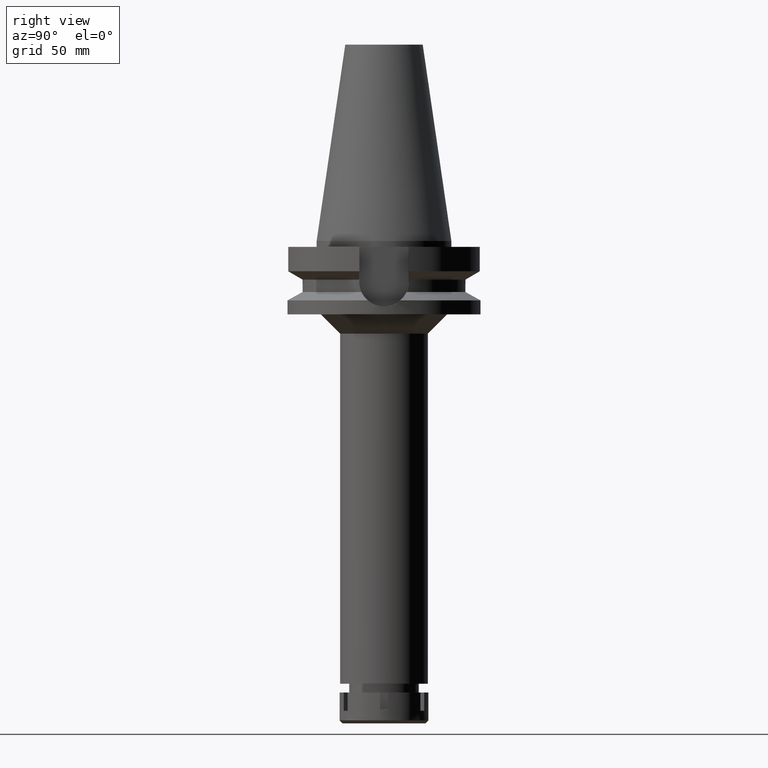
[diagram: clean part render]
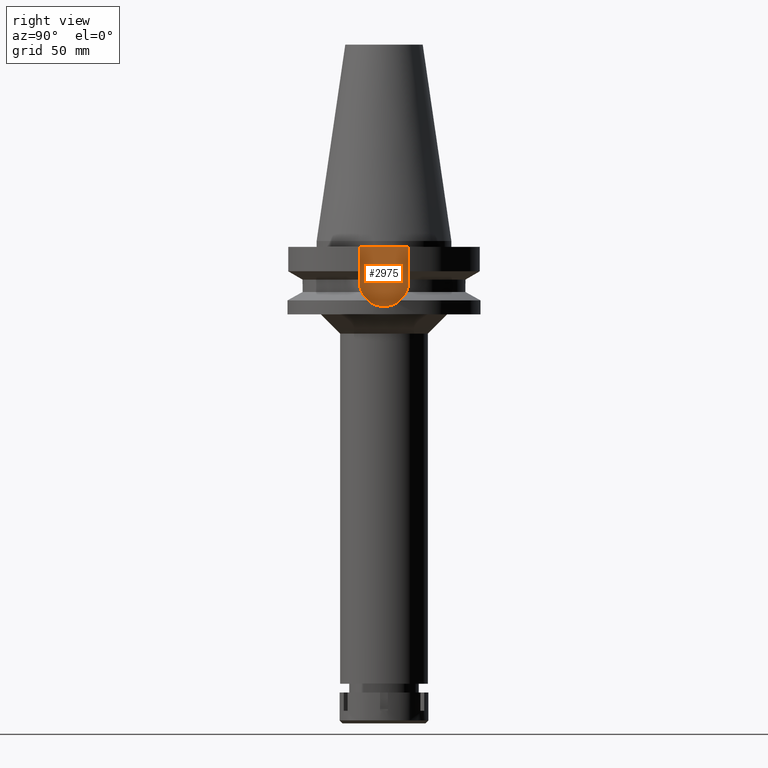
[diagram: same view with one face highlighted and labeled with its STEP entity id]
A machine part, right view. The second image highlights one B-rep face of the part: STEP entity #2975.
In plain terms, the highlighted planar face has unit normal (1, 0, 0).
Its self-contained STEP definition (entity closure, byte-faithful):
#72 = EDGE_CURVE ( 'NONE', #930, #2603, #2407, .T. ) ;
#90 = DIRECTION ( 'NONE',  ( 0.0000000000000000000, -1.000000000000000000, 0.0000000000000000000 ) ) ;
#181 = ORIENTED_EDGE ( 'NONE', *, *, #2139, .F. ) ;
#220 = CARTESIAN_POINT ( 'NONE',  ( 35.39999999999999858, 12.84999999999999964, -21.14999999999999858 ) ) ;
#556 = DIRECTION ( 'NONE',  ( 0.0000000000000000000, 1.000000000000000000, 0.0000000000000000000 ) ) ;
#574 = CARTESIAN_POINT ( 'NONE',  ( 35.39999999999999858, -12.84999999999999964, -21.14999999999999858 ) ) ;
#686 = VECTOR ( 'NONE', #3351, 1000.000000000000000 ) ;
#726 = AXIS2_PLACEMENT_3D ( 'NONE', #2984, #2691, #556 ) ;
#761 = DIRECTION ( 'NONE',  ( 0.0000000000000000000, 1.000000000000000000, 0.0000000000000000000 ) ) ;
#930 = VERTEX_POINT ( 'NONE', #220 ) ;
#943 = LINE ( 'NONE', #2059, #1547 ) ;
#973 = ORIENTED_EDGE ( 'NONE', *, *, #3436, .F. ) ;
#1037 = ORIENTED_EDGE ( 'NONE', *, *, #72, .F. ) ;
#1467 = CARTESIAN_POINT ( 'NONE',  ( 35.39999999999999858, -12.84999999999999964, -21.14999999999999858 ) ) ;
#1547 = VECTOR ( 'NONE', #2351, 1000.000000000000000 ) ;
#1620 = FACE_OUTER_BOUND ( 'NONE', #2347, .T. ) ;
#1790 = AXIS2_PLACEMENT_3D ( 'NONE', #3546, #3028, #761 ) ;
#1877 = VERTEX_POINT ( 'NONE', #1973 ) ;
#1925 = PLANE ( 'NONE',  #1790 ) ;
#1973 = CARTESIAN_POINT ( 'NONE',  ( 35.39999999999999858, 12.84999999999999964, -3.000000000000000000 ) ) ;
#2059 = CARTESIAN_POINT ( 'NONE',  ( 35.39999999999999858, 12.84999999999999964, -3.000000000000000000 ) ) ;
#2139 = EDGE_CURVE ( 'NONE', #1877, #930, #943, .T. ) ;
#2305 = VERTEX_POINT ( 'NONE', #2484 ) ;
#2347 = EDGE_LOOP ( 'NONE', ( #973, #1037, #181, #3305 ) ) ;
#2351 = DIRECTION ( 'NONE',  ( 0.0000000000000000000, 0.0000000000000000000, -1.000000000000000000 ) ) ;
#2407 = CIRCLE ( 'NONE', #726, 12.84999999999999964 ) ;
#2484 = CARTESIAN_POINT ( 'NONE',  ( 35.39999999999999858, -12.84999999999999964, -3.000000000000000000 ) ) ;
#2535 = LINE ( 'NONE', #574, #686 ) ;
#2574 = CARTESIAN_POINT ( 'NONE',  ( 35.39999999999999858, 12.84999999999999964, -3.000000000000000000 ) ) ;
#2603 = VERTEX_POINT ( 'NONE', #1467 ) ;
#2691 = DIRECTION ( 'NONE',  ( -1.000000000000000000, 0.0000000000000000000, 0.0000000000000000000 ) ) ;
#2975 = ADVANCED_FACE ( 'NONE', ( #1620 ), #1925, .T. ) ;
#2984 = CARTESIAN_POINT ( 'NONE',  ( 35.39999999999999858, 0.0000000000000000000, -21.14999999999999858 ) ) ;
#3028 = DIRECTION ( 'NONE',  ( 1.000000000000000000, 0.0000000000000000000, 0.0000000000000000000 ) ) ;
#3232 = EDGE_CURVE ( 'NONE', #1877, #2305, #3379, .T. ) ;
#3305 = ORIENTED_EDGE ( 'NONE', *, *, #3232, .T. ) ;
#3351 = DIRECTION ( 'NONE',  ( 0.0000000000000000000, 0.0000000000000000000, 1.000000000000000000 ) ) ;
#3354 = VECTOR ( 'NONE', #90, 1000.000000000000000 ) ;
#3379 = LINE ( 'NONE', #2574, #3354 ) ;
#3436 = EDGE_CURVE ( 'NONE', #2603, #2305, #2535, .T. ) ;
#3546 = CARTESIAN_POINT ( 'NONE',  ( 35.39999999999999858, 0.0000000000000000000, 0.0000000000000000000 ) ) ;